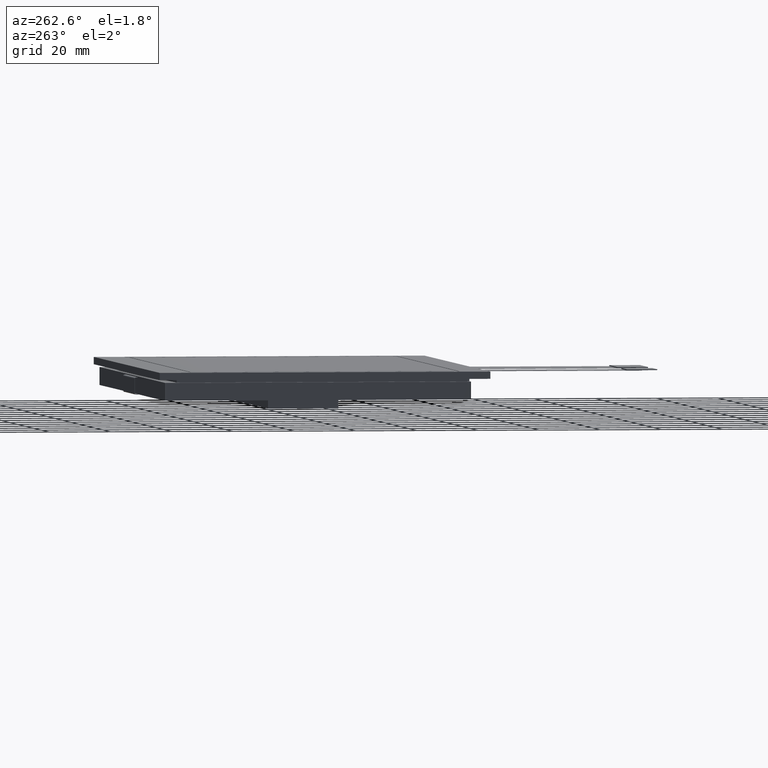
[diagram: clean part render]
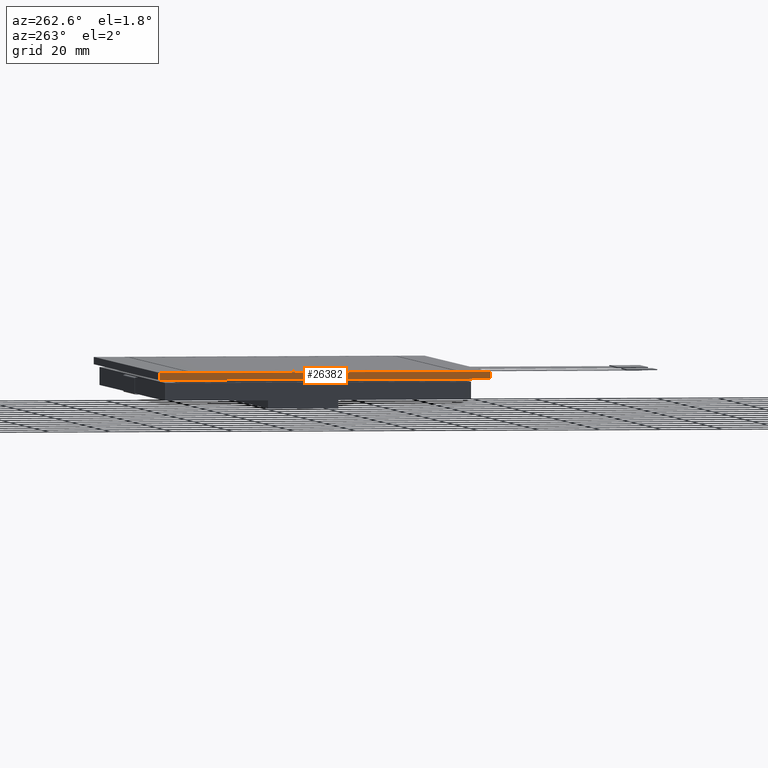
[diagram: same view with one face highlighted and labeled with its STEP entity id]
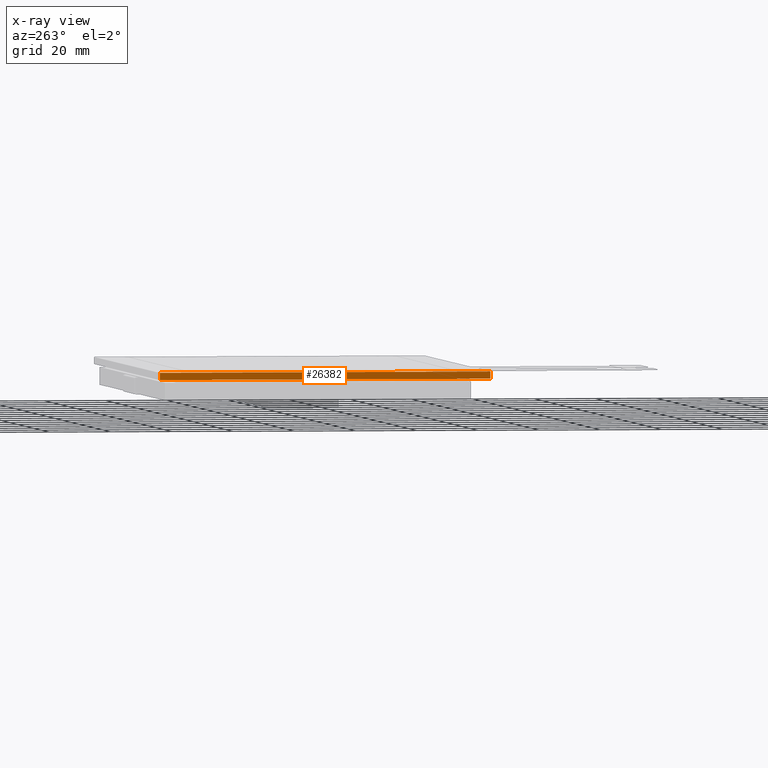
[diagram: x-ray of the same camera — body ghosted, the highlighted face saturated]
A machine part, auxiliary view. The second image highlights one B-rep face of the part: STEP entity #26382.
The next image is the same camera in x-ray: the body ghosted, the highlighted face saturated — about 0% of this face is hidden behind the body in this view.
In plain terms, the highlighted planar face has unit normal (-1, 0, 0).
Its self-contained STEP definition (entity closure, byte-faithful):
#1112=FACE_OUTER_BOUND('',#2494,.T.);
#2494=EDGE_LOOP('',(#19026,#19027,#19028,#19029));
#3704=LINE('',#36613,#7174);
#4596=LINE('',#38417,#8066);
#4599=LINE('',#38422,#8069);
#4600=LINE('',#38424,#8070);
#7174=VECTOR('',#29467,10.);
#8066=VECTOR('',#30979,10.);
#8069=VECTOR('',#30986,10.);
#8070=VECTOR('',#30989,10.);
#10618=VERTEX_POINT('',#36610);
#10619=VERTEX_POINT('',#36612);
#11218=VERTEX_POINT('',#38410);
#11221=VERTEX_POINT('',#38415);
#13224=EDGE_CURVE('',#10618,#10619,#3704,.T.);
#14125=EDGE_CURVE('',#11221,#11218,#4596,.T.);
#14128=EDGE_CURVE('',#11221,#10619,#4599,.T.);
#14129=EDGE_CURVE('',#11218,#10618,#4600,.T.);
#19026=ORIENTED_EDGE('',*,*,#14125,.F.);
#19027=ORIENTED_EDGE('',*,*,#14128,.T.);
#19028=ORIENTED_EDGE('',*,*,#13224,.F.);
#19029=ORIENTED_EDGE('',*,*,#14129,.F.);
#25212=PLANE('',#27798);
#26382=ADVANCED_FACE('',(#1112),#25212,.T.);
#27798=AXIS2_PLACEMENT_3D('',#38423,#30987,#30988);
#29467=DIRECTION('',(0.,1.,0.));
#30979=DIRECTION('',(0.,-1.,0.));
#30986=DIRECTION('',(0.,0.,-1.));
#30987=DIRECTION('center_axis',(-1.,0.,0.));
#30988=DIRECTION('ref_axis',(0.,1.,0.));
#30989=DIRECTION('',(0.,0.,-1.));
#36610=CARTESIAN_POINT('',(-83.4,-54.0002433269934,-2.35));
#36612=CARTESIAN_POINT('',(-83.4,53.9997566730066,-2.35));
#36613=CARTESIAN_POINT('',(-83.4,53.9997566730066,-2.35));
#38410=CARTESIAN_POINT('',(-83.4,-54.0002433269934,0.));
#38415=CARTESIAN_POINT('',(-83.4,53.9997566730066,0.));
#38417=CARTESIAN_POINT('',(-83.4,53.9997566730066,0.));
#38422=CARTESIAN_POINT('',(-83.4,53.9997566730066,0.));
#38423=CARTESIAN_POINT('Origin',(-83.4,-54.0002433269934,0.));
#38424=CARTESIAN_POINT('',(-83.4,-54.0002433269934,0.));